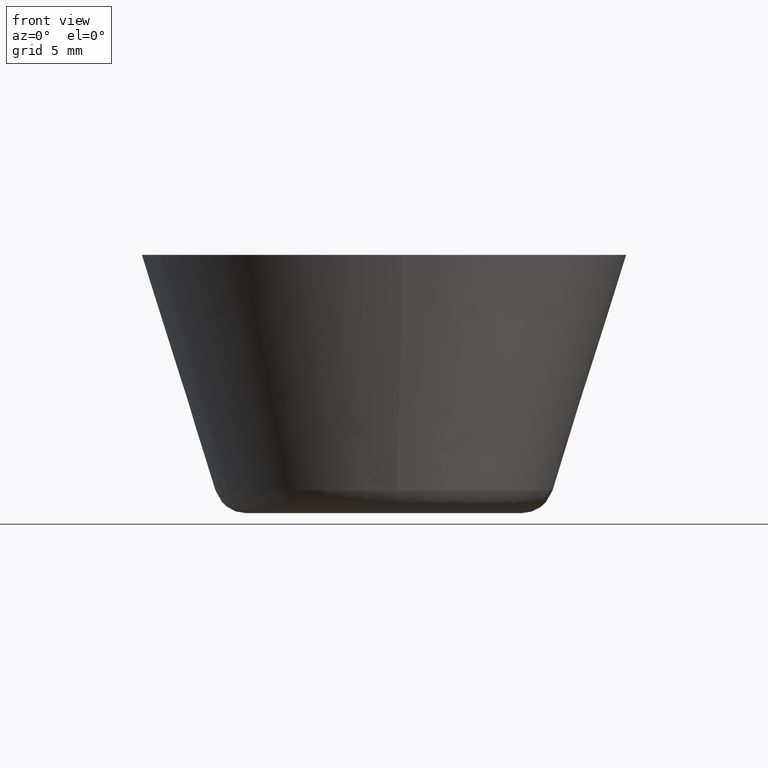
[diagram: clean part render]
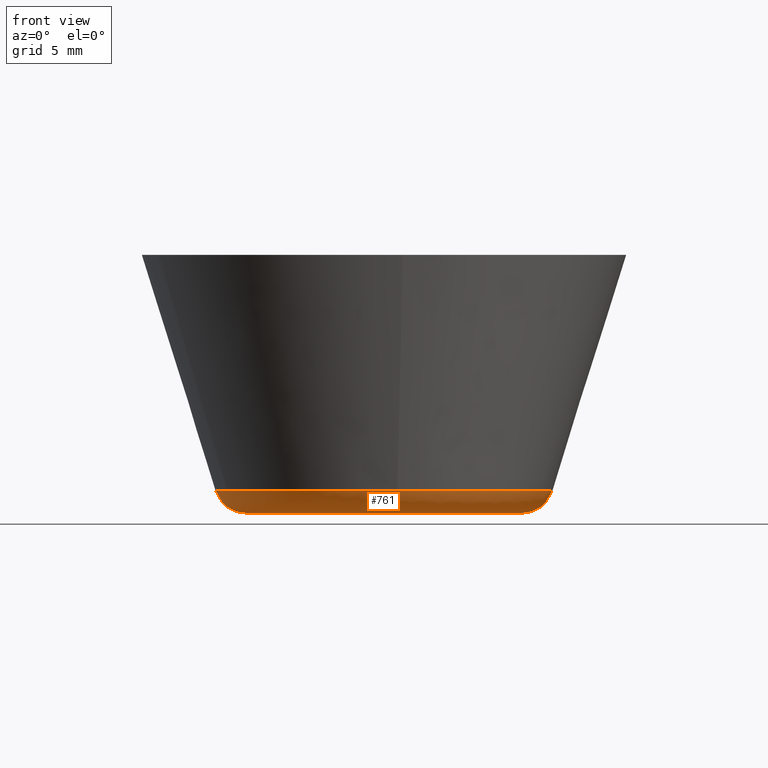
[diagram: same view with one face highlighted and labeled with its STEP entity id]
A machine part, front view. The second image highlights one B-rep face of the part: STEP entity #761.
In plain terms, the highlighted face is a freeform B-spline surface patch.
Its self-contained STEP definition (entity closure, byte-faithful):
#442=CARTESIAN_POINT('',(0.818999183986400,-10.406399021797251,1.403448406243327));
#443=VERTEX_POINT('',#442);
#444=CARTESIAN_POINT('',(-9.706462087134847,-3.840370222216521,1.403440654762399));
#445=VERTEX_POINT('',#444);
#446=CARTESIAN_POINT('',(0.818999183986400,-10.406399021797245,1.403448406243326));
#447=CARTESIAN_POINT('',(0.410131792018752,-10.438577488119355,1.403448200127219));
#448=CARTESIAN_POINT('',(0.000000111438537,-10.438577471909250,1.403447982698944));
#449=CARTESIAN_POINT('',(-7.095877095890447,-10.438577191450744,1.403444220872161));
#450=CARTESIAN_POINT('',(-9.706462087134847,-3.840370222216521,1.403440654762399));
#458=(BOUNDED_CURVE()B_SPLINE_CURVE(2,(#446,#447,#448,#449,#450),.UNSPECIFIED.,.F.,.U.)B_SPLINE_CURVE_WITH_KNOTS((3,2,3),(0.736331336337999,0.750000000000000,0.937532653506869),.UNSPECIFIED.)CURVE()GEOMETRIC_REPRESENTATION_ITEM()RATIONAL_B_SPLINE_CURVE((0.969723430685922,0.983986164412632,1.0,0.780291829926981,0.890203308901416))REPRESENTATION_ITEM(''));
#459=EDGE_CURVE('',#443,#445,#458,.T.);
#519=CARTESIAN_POINT('',(-10.438578000000000,0.0,1.403450000000000));
#520=VERTEX_POINT('',#519);
#521=CARTESIAN_POINT('',(-9.706462087134847,-3.840370222216521,1.403440654762399));
#522=CARTESIAN_POINT('',(-10.438576642216686,-1.989968693509344,1.403445327381199));
#523=CARTESIAN_POINT('',(-10.438578000000000,0.0,1.403450000000000));
#531=(BOUNDED_CURVE()B_SPLINE_CURVE(2,(#521,#522,#523),.UNSPECIFIED.,.F.,.U.)B_SPLINE_CURVE_WITH_KNOTS((3,3),(0.937532653506869,1.0),.UNSPECIFIED.)CURVE()GEOMETRIC_REPRESENTATION_ITEM()RATIONAL_B_SPLINE_CURVE((0.890203308901416,0.926814951259567,1.0))REPRESENTATION_ITEM(''));
#532=EDGE_CURVE('',#445,#520,#531,.T.);
#581=CARTESIAN_POINT('',(10.438578000000000,0.0,1.403450000000000));
#582=VERTEX_POINT('',#581);
#583=CARTESIAN_POINT('',(10.438578000000000,0.0,1.403450000000000));
#584=CARTESIAN_POINT('',(10.438577980461805,-9.649324017404140,1.403449203121664));
#585=CARTESIAN_POINT('',(0.818999183986400,-10.406399021797245,1.403448406243326));
#593=(BOUNDED_CURVE()B_SPLINE_CURVE(2,(#583,#584,#585),.UNSPECIFIED.,.F.,.U.)B_SPLINE_CURVE_WITH_KNOTS((3,3),(0.500000000000000,0.736331336337999),.UNSPECIFIED.)CURVE()GEOMETRIC_REPRESENTATION_ITEM()RATIONAL_B_SPLINE_CURVE((1.0,0.723120616773916,0.969723430685922))REPRESENTATION_ITEM(''));
#594=EDGE_CURVE('',#582,#443,#593,.T.);
#596=CARTESIAN_POINT('',(1.800007206947716,10.282212031388489,1.403450006860395));
#597=VERTEX_POINT('',#596);
#598=CARTESIAN_POINT('',(1.800007206947716,10.282212031388493,1.403450006860395));
#599=CARTESIAN_POINT('',(10.438578000000001,8.769941188450281,1.403450000000000));
#600=CARTESIAN_POINT('',(10.438578000000000,0.0,1.403450000000000));
#608=(BOUNDED_CURVE()B_SPLINE_CURVE(2,(#598,#599,#600),.UNSPECIFIED.,.F.,.U.)B_SPLINE_CURVE_WITH_KNOTS((3,3),(0.279646299375404,0.500000000000000),.UNSPECIFIED.)CURVE()GEOMETRIC_REPRESENTATION_ITEM()RATIONAL_B_SPLINE_CURVE((0.938771991543219,0.741839581386425,1.0))REPRESENTATION_ITEM(''));
#609=EDGE_CURVE('',#597,#582,#608,.T.);
#611=CARTESIAN_POINT('',(-10.005604438301059,2.975195796537900,1.403450006859276));
#612=VERTEX_POINT('',#611);
#628=CARTESIAN_POINT('',(-10.438578000000000,0.0,1.403450000000000));
#629=CARTESIAN_POINT('',(-10.438578000000000,1.519102733238019,1.403450000000001));
#630=CARTESIAN_POINT('',(-10.005604438301061,2.975195796537900,1.403450006859277));
#638=(BOUNDED_CURVE()B_SPLINE_CURVE(2,(#628,#629,#630),.UNSPECIFIED.,.F.,.U.)B_SPLINE_CURVE_WITH_KNOTS((3,3),(0.0,0.048526662064601),.UNSPECIFIED.)CURVE()GEOMETRIC_REPRESENTATION_ITEM()RATIONAL_B_SPLINE_CURVE((1.0,0.943147478998505,0.908365862590292))REPRESENTATION_ITEM(''));
#639=EDGE_CURVE('',#520,#612,#638,.T.);
#644=CARTESIAN_POINT('',(1.805468099015148,10.313399532312793,1.516278612607234));
#645=CARTESIAN_POINT('',(2.402879734335275,10.208816397899001,1.516278612607234));
#646=CARTESIAN_POINT('',(2.984220073320296,10.035953144752288,1.516278612607235));
#647=CARTESIAN_POINT('',(13.020173218072577,7.051733071431992,1.516278612607234));
#648=CARTESIAN_POINT('',(10.035953144752288,-2.984220073320294,1.516278612607235));
#649=CARTESIAN_POINT('',(7.051733071431994,-13.020173218072577,1.516278612607234));
#650=CARTESIAN_POINT('',(-2.984220073320291,-10.035953144752288,1.516278612607235));
#651=CARTESIAN_POINT('',(-13.020173218072577,-7.051733071431994,1.516278612607234));
#652=CARTESIAN_POINT('',(-10.035953144752288,2.984220073320291,1.516278612607235));
#653=CARTESIAN_POINT('',(1.736267580766908,9.918104487816295,-0.093706337643790));
#654=CARTESIAN_POINT('',(2.310781445257282,9.817529846881515,-0.093706337643790));
#655=CARTESIAN_POINT('',(2.869839998838109,9.651292147911223,-0.093706337643790));
#656=CARTESIAN_POINT('',(12.521132146749327,6.781452149073113,-0.093706337643790));
#657=CARTESIAN_POINT('',(9.651292147911223,-2.869839998838109,-0.093706337643790));
#658=CARTESIAN_POINT('',(6.781452149073115,-12.521132146749325,-0.093706337643790));
#659=CARTESIAN_POINT('',(-2.869839998838106,-9.651292147911223,-0.093706337643790));
#660=CARTESIAN_POINT('',(-12.521132146749325,-6.781452149073115,-0.093706337643790));
#661=CARTESIAN_POINT('',(-9.651292147911224,2.869839998838105,-0.093706337643790));
#662=CARTESIAN_POINT('',(1.450641039428608,8.286516181458836,0.003430171480325));
#663=CARTESIAN_POINT('',(1.930643890822253,8.202486678586160,0.003430171480325));
#664=CARTESIAN_POINT('',(2.397733923632593,8.063596088738269,0.003430171480325));
#665=CARTESIAN_POINT('',(10.461330012370860,5.665862165105675,0.003430171480325));
#666=CARTESIAN_POINT('',(8.063596088738269,-2.397733923632593,0.003430171480325));
#667=CARTESIAN_POINT('',(5.665862165105678,-10.461330012370858,0.003430171480325));
#668=CARTESIAN_POINT('',(-2.397733923632590,-8.063596088738269,0.003430171480325));
#669=CARTESIAN_POINT('',(-10.461330012370858,-5.665862165105678,0.003430171480325));
#670=CARTESIAN_POINT('',(-8.063596088738269,2.397733923632590,0.003430171480325));
#678=(BOUNDED_SURFACE()B_SPLINE_SURFACE(2,2,((#644,#653,#662),(#645,#654,#663),(#646,#655,#664),(#647,#656,#665),(#648,#657,#666),(#649,#658,#667),(#650,#659,#668),(#651,#660,#669),(#652,#661,#670)),.UNSPECIFIED.,.F.,.F.,.U.)B_SPLINE_SURFACE_WITH_KNOTS((3,2,2,2,3),(3,3),(0.0,1.387811603100435,18.735473185875168,36.083134768649899,53.430796351424632),(0.0,2.886478810885593),.UNSPECIFIED.)GEOMETRIC_REPRESENTATION_ITEM()RATIONAL_B_SPLINE_SURFACE(((0.880466914951167,0.677783043769857,0.880869243693815),(0.898577439304765,0.691724517449570,0.898988043638884),(0.920137583428314,0.708321506910538,0.920558039655252),(0.650635524866764,0.500858940796715,0.650932832316023),(0.920137583428314,0.708321506910538,0.920558039655252),(0.650635524866764,0.500858940796715,0.650932832316023),(0.920137583428314,0.708321506910538,0.920558039655252),(0.650635524866764,0.500858940796715,0.650932832316023),(0.920137583428314,0.708321506910538,0.920558039655252)))REPRESENTATION_ITEM('')SURFACE());
#679=CARTESIAN_POINT('',(1.470830021676659,8.401847551555782,-6.816059E-015));
#680=VERTEX_POINT('',#679);
#681=CARTESIAN_POINT('',(8.529617999999999,0.0,0.0));
#682=VERTEX_POINT('',#681);
#683=CARTESIAN_POINT('',(1.470830021676660,8.401847551555782,-6.816059E-015));
#684=CARTESIAN_POINT('',(8.529617999999999,7.166133952252383,-1.421085E-014));
#685=CARTESIAN_POINT('',(8.529617999999999,0.0,-1.421085E-014));
#693=(BOUNDED_CURVE()B_SPLINE_CURVE(2,(#683,#684,#685),.UNSPECIFIED.,.F.,.U.)B_SPLINE_CURVE_WITH_KNOTS((3,3),(0.279646299377397,0.500000000000000),.UNSPECIFIED.)CURVE()GEOMETRIC_REPRESENTATION_ITEM()RATIONAL_B_SPLINE_CURVE((0.938771991539656,0.741839581388760,1.0))REPRESENTATION_ITEM(''));
#694=EDGE_CURVE('',#680,#682,#693,.T.);
#695=ORIENTED_EDGE('',*,*,#694,.F.);
#696=CARTESIAN_POINT('',(1.800007206947716,10.282212031388495,1.403450006860395));
#697=CARTESIAN_POINT('',(1.724379680431337,9.850203614982046,5.451971E-010));
#698=CARTESIAN_POINT('',(1.470830021676659,8.401847551555782,-6.816059E-015));
#706=(BOUNDED_CURVE()B_SPLINE_CURVE(2,(#696,#697,#698),.UNSPECIFIED.,.F.,.U.)B_SPLINE_CURVE_WITH_KNOTS((3,3),(-1.686257605639054,-0.312243931178952),.UNSPECIFIED.)CURVE()GEOMETRIC_REPRESENTATION_ITEM()RATIONAL_B_SPLINE_CURVE((0.862894643162690,0.695373525203012,0.863260430332707))REPRESENTATION_ITEM(''));
#707=EDGE_CURVE('',#597,#680,#706,.T.);
#708=ORIENTED_EDGE('',*,*,#707,.F.);
#709=ORIENTED_EDGE('',*,*,#609,.T.);
#710=ORIENTED_EDGE('',*,*,#594,.T.);
#711=ORIENTED_EDGE('',*,*,#459,.T.);
#712=ORIENTED_EDGE('',*,*,#532,.T.);
#713=ORIENTED_EDGE('',*,*,#639,.T.);
#714=CARTESIAN_POINT('',(-8.175824705407951,2.431105431688973,-6.828535E-015));
#715=VERTEX_POINT('',#714);
#716=CARTESIAN_POINT('',(-10.005604438301061,2.975195796537901,1.403450006859277));
#717=CARTESIAN_POINT('',(-9.585217724328048,2.850192575385053,6.570220E-010));
#718=CARTESIAN_POINT('',(-8.175824705407951,2.431105431688974,-6.828535E-015));
#726=(BOUNDED_CURVE()B_SPLINE_CURVE(2,(#716,#717,#718),.UNSPECIFIED.,.F.,.U.)B_SPLINE_CURVE_WITH_KNOTS((3,3),(-1.686257605637694,-0.312243931267177),.UNSPECIFIED.)CURVE()GEOMETRIC_REPRESENTATION_ITEM()RATIONAL_B_SPLINE_CURVE((0.901773603732463,0.726704580612781,0.902155871947911))REPRESENTATION_ITEM(''));
#727=EDGE_CURVE('',#612,#715,#726,.T.);
#728=ORIENTED_EDGE('',*,*,#727,.T.);
#729=CARTESIAN_POINT('',(-8.529617999999999,0.0,-1.421085E-014));
#730=VERTEX_POINT('',#729);
#731=CARTESIAN_POINT('',(-8.529617999999999,0.0,-1.421085E-014));
#732=CARTESIAN_POINT('',(-8.529617999999999,1.241296086287987,-1.421085E-014));
#733=CARTESIAN_POINT('',(-8.175824705407951,2.431105431688973,-6.828535E-015));
#741=(BOUNDED_CURVE()B_SPLINE_CURVE(2,(#731,#732,#733),.UNSPECIFIED.,.F.,.U.)B_SPLINE_CURVE_WITH_KNOTS((3,3),(0.0,0.048526662066493),.UNSPECIFIED.)CURVE()GEOMETRIC_REPRESENTATION_ITEM()RATIONAL_B_SPLINE_CURVE((1.0,0.943147478996289,0.908365862587580))REPRESENTATION_ITEM(''));
#742=EDGE_CURVE('',#730,#715,#741,.T.);
#743=ORIENTED_EDGE('',*,*,#742,.F.);
#744=CARTESIAN_POINT('',(8.529617999999999,0.0,-1.421085E-014));
#745=CARTESIAN_POINT('',(8.529617999999999,-8.529617999999999,-1.421085E-014));
#746=CARTESIAN_POINT('',(0.0,-8.529617999999999,-1.421085E-014));
#747=CARTESIAN_POINT('',(-8.529617999999999,-8.529617999999999,-1.421085E-014));
#748=CARTESIAN_POINT('',(-8.529617999999999,0.0,-1.421085E-014));
#756=(BOUNDED_CURVE()B_SPLINE_CURVE(2,(#744,#745,#746,#747,#748),.UNSPECIFIED.,.F.,.U.)B_SPLINE_CURVE_WITH_KNOTS((3,2,3),(0.500000000000000,0.750000000000000,1.0),.UNSPECIFIED.)CURVE()GEOMETRIC_REPRESENTATION_ITEM()RATIONAL_B_SPLINE_CURVE((1.0,0.707106781186548,1.0,0.707106781186548,1.0))REPRESENTATION_ITEM(''));
#757=EDGE_CURVE('',#682,#730,#756,.T.);
#758=ORIENTED_EDGE('',*,*,#757,.F.);
#759=EDGE_LOOP('',(#695,#708,#709,#710,#711,#712,#713,#728,#743,#758));
#760=FACE_OUTER_BOUND('',#759,.T.);
#761=ADVANCED_FACE('',(#760),#678,.T.);